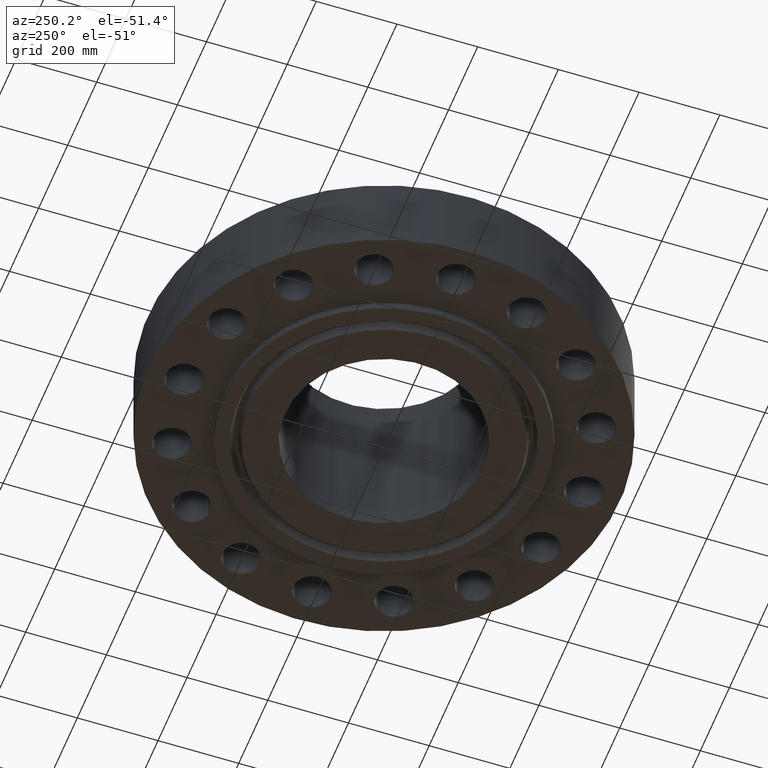
[diagram: clean part render]
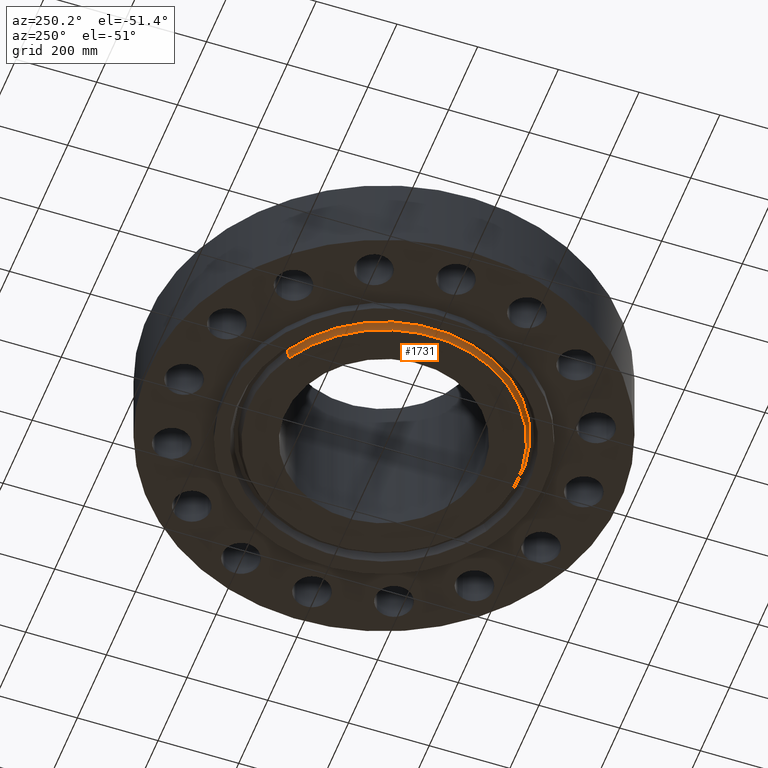
[diagram: same view with one face highlighted and labeled with its STEP entity id]
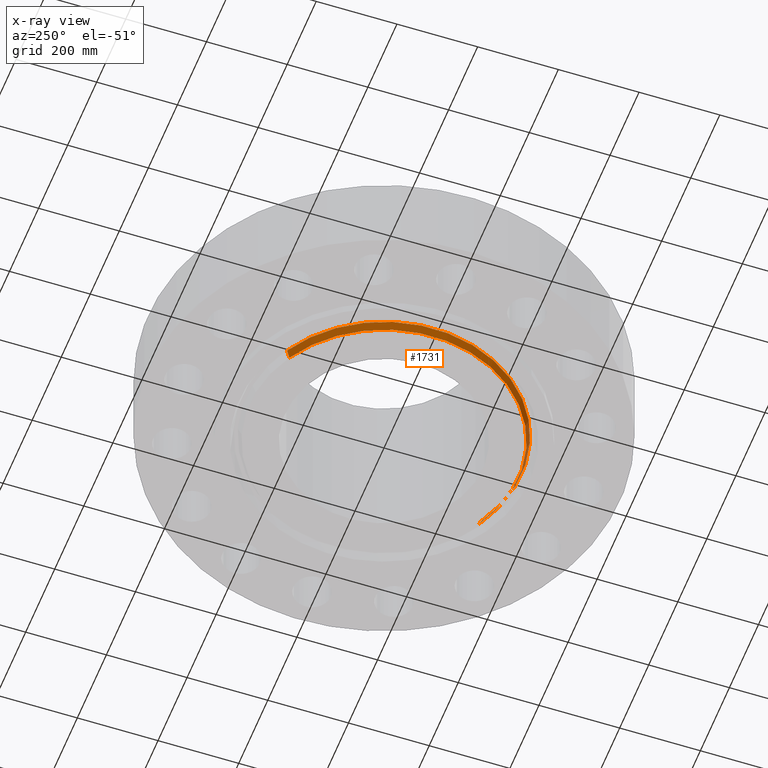
[diagram: x-ray of the same camera — body ghosted, the highlighted face saturated]
A machine part, auxiliary view. The second image highlights one B-rep face of the part: STEP entity #1731.
The next image is the same camera in x-ray: the body ghosted, the highlighted face saturated — about 0% of this face is hidden behind the body in this view.
In plain terms, the highlighted conical surface has half-angle 23 deg.
Its self-contained STEP definition (entity closure, byte-faithful):
#1539=AXIS2_PLACEMENT_3D('Circle Axis2P3D',#1537,#1538,$) ;
#1693=AXIS2_PLACEMENT_3D('Circle Axis2P3D',#1691,#1692,$) ;
#1706=AXIS2_PLACEMENT_3D('Cone Axis2P3D',#1703,#1704,#1705) ;
#1532=CARTESIAN_POINT('Vertex',(-6.27735828974,11.4906272742,-0.813000000003)) ;
#1534=CARTESIAN_POINT('Vertex',(6.27735828974,-11.4906272742,-0.813000000003)) ;
#1537=CARTESIAN_POINT('Axis2P3D Location',(-1.1189649382E-015,0.,-0.813000000003)) ;
#1669=CARTESIAN_POINT('Vertex',(6.43115215934,-11.7721450641,-0.0572712739222)) ;
#1676=CARTESIAN_POINT('Vertex',(-6.43115215934,11.7721450641,-0.0572712739222)) ;
#1691=CARTESIAN_POINT('Axis2P3D Location',(0.,0.,-0.0572712739222)) ;
#1703=CARTESIAN_POINT('Axis2P3D Location',(0.,0.,-0.873000000003)) ;
#1708=CARTESIAN_POINT('Line Origine',(-6.35425522454,11.6313861691,-0.435135636963)) ;
#1713=CARTESIAN_POINT('Line Origine',(6.35425522454,-11.6313861691,-0.435135636963)) ;
#1538=DIRECTION('Axis2P3D Direction',(0.,0.,-0.0393700787402)) ;
#1692=DIRECTION('Axis2P3D Direction',(0.,0.,0.0393700787402)) ;
#1704=DIRECTION('Axis2P3D Direction',(0.,0.,0.0393700787402)) ;
#1705=DIRECTION('Axis2P3D XDirection',(-0.0188750212049,0.0345504945626,0.)) ;
#1709=DIRECTION('Vector Direction',(-0.00737505833565,0.0134999537303,0.0362403485611)) ;
#1714=DIRECTION('Vector Direction',(0.00737505833565,-0.0134999537303,0.0362403485611)) ;
#1710=VECTOR('Line Direction',#1709,0.0393700787402) ;
#1715=VECTOR('Line Direction',#1714,0.0393700787402) ;
#1726=ORIENTED_EDGE('',*,*,#1717,.F.) ;
#1727=ORIENTED_EDGE('',*,*,#1695,.F.) ;
#1728=ORIENTED_EDGE('',*,*,#1712,.T.) ;
#1729=ORIENTED_EDGE('',*,*,#1541,.F.) ;
#1731=ADVANCED_FACE('PartBody',(#1730),#1707,.T.) ;
#1540=CIRCLE('generated circle',#1539,13.0935000001) ;
#1694=CIRCLE('generated circle',#1693,13.4142878122) ;
#1707=CONICAL_SURFACE('Cone',#1706,13.0680315111,0.401425727959) ;
#1541=EDGE_CURVE('',#1535,#1533,#1540,.T.) ;
#1695=EDGE_CURVE('',#1677,#1670,#1694,.T.) ;
#1712=EDGE_CURVE('',#1677,#1533,#1711,.F.) ;
#1717=EDGE_CURVE('',#1670,#1535,#1716,.F.) ;
#1725=EDGE_LOOP('',(#1726,#1727,#1728,#1729)) ;
#1730=FACE_OUTER_BOUND('',#1725,.T.) ;
#1711=LINE('Line',#1708,#1710) ;
#1716=LINE('Line',#1713,#1715) ;
#1533=VERTEX_POINT('',#1532) ;
#1535=VERTEX_POINT('',#1534) ;
#1670=VERTEX_POINT('',#1669) ;
#1677=VERTEX_POINT('',#1676) ;